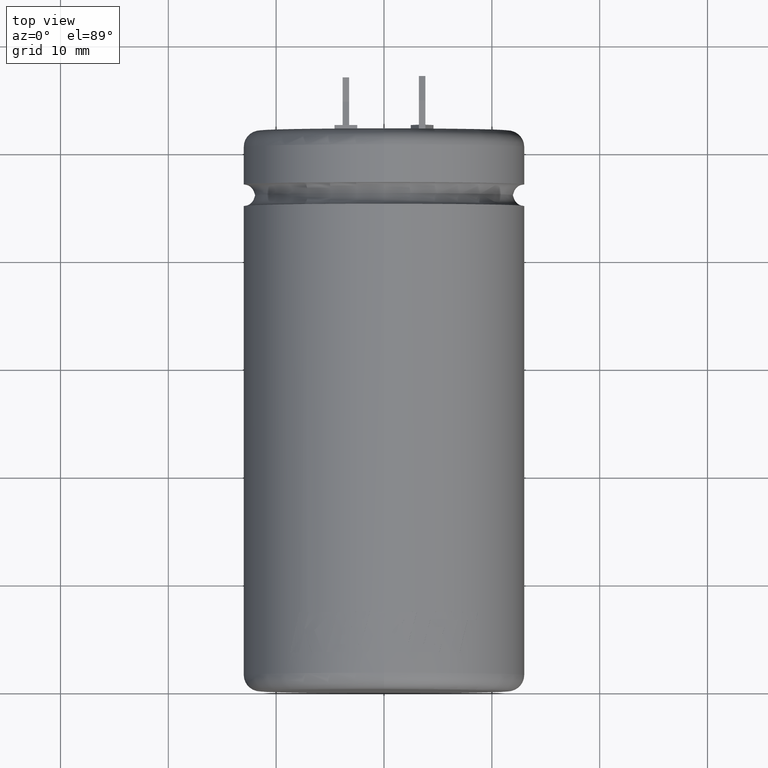
[diagram: clean part render]
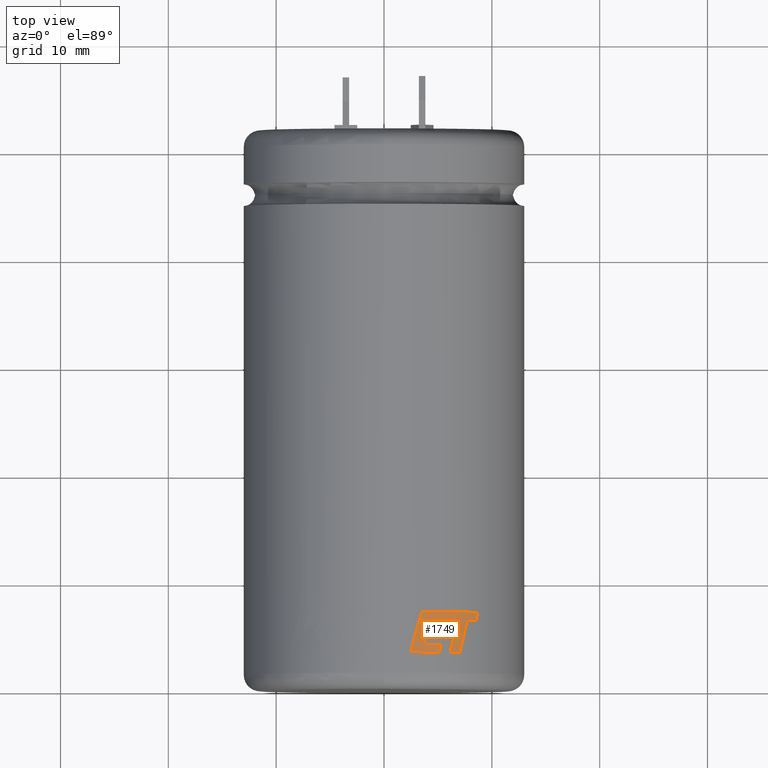
[diagram: same view with one face highlighted and labeled with its STEP entity id]
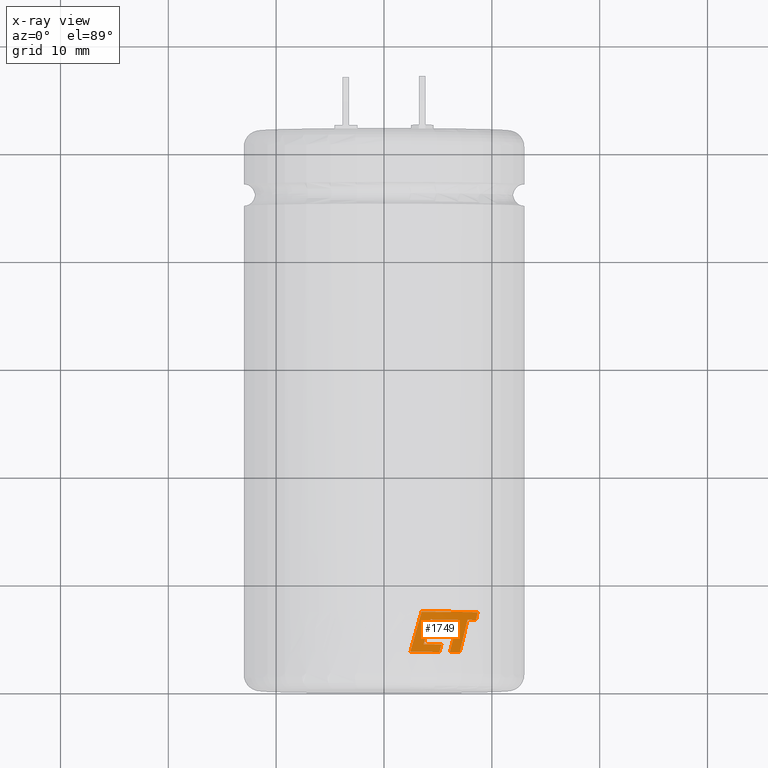
[diagram: x-ray of the same camera — body ghosted, the highlighted face saturated]
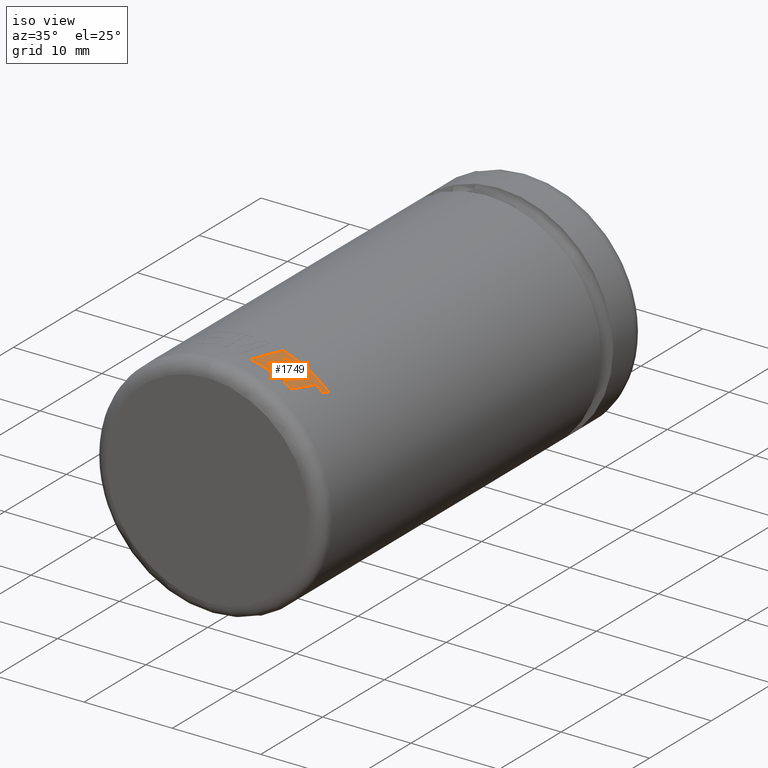
[diagram: same view with one face highlighted and labeled with its STEP entity id]
A machine part, top view. The second image highlights one B-rep face of the part: STEP entity #1749.
The next image is the same camera in x-ray: the body ghosted, the highlighted face saturated — about 0% of this face is hidden behind the body in this view.
A second angle (iso view) of the same face is appended — the face is thin or edge-on in the first view.
In plain terms, the highlighted cylindrical surface (partial cylindrical patch) has radius 12.99 mm, axis along (-0, -1, -0).
Its self-contained STEP definition (entity closure, byte-faithful):
#24 = CARTESIAN_POINT ( 'NONE',  ( 5.367192179862492200, 6.445095965676284100, 11.84298691839125100 ) ) ;
#70 = CARTESIAN_POINT ( 'NONE',  ( 4.116752150106099100, 5.755739136159510500, 12.32040793702046400 ) ) ;
#91 = EDGE_CURVE ( 'NONE', #578, #3281, #3620, .T. ) ;
#105 = DIRECTION ( 'NONE',  ( -0.0000000000000000000, -1.000000000000000000, -0.0000000000000000000 ) ) ;
#117 = ORIENTED_EDGE ( 'NONE', *, *, #4306, .T. ) ;
#191 = CARTESIAN_POINT ( 'NONE',  ( 7.735420378266218800, 6.438231380337271000, 10.43567782041510300 ) ) ;
#256 = ORIENTED_EDGE ( 'NONE', *, *, #1803, .T. ) ;
#269 = CARTESIAN_POINT ( 'NONE',  ( 0.0000000000000000000, 5.755739136159496300, 0.0000000000000000000 ) ) ;
#353 = EDGE_CURVE ( 'NONE', #2528, #2106, #4624, .T. ) ;
#368 = CARTESIAN_POINT ( 'NONE',  ( 4.116752150106099100, 5.755739136159510500, 12.32040793702046400 ) ) ;
#422 = ORIENTED_EDGE ( 'NONE', *, *, #4603, .T. ) ;
#452 = AXIS2_PLACEMENT_3D ( 'NONE', #4329, #1043, #1442 ) ;
#468 = CARTESIAN_POINT ( 'NONE',  ( 2.453458577520435800, 3.433728050141748900, 12.75620010067227900 ) ) ;
#497 = ORIENTED_EDGE ( 'NONE', *, *, #3757, .T. ) ;
#518 = EDGE_CURVE ( 'NONE', #3371, #3281, #2979, .T. ) ;
#563 = CARTESIAN_POINT ( 'NONE',  ( 6.210369351516487100, 6.441741036397344200, 11.41549672385512100 ) ) ;
#578 = VERTEX_POINT ( 'NONE', #823 ) ;
#582 = EDGE_CURVE ( 'NONE', #3464, #1506, #3551, .T. ) ;
#595 = CARTESIAN_POINT ( 'NONE',  ( 5.418316409010668800, 5.067529549049550200, 11.80601318362154700 ) ) ;
#621 = CARTESIAN_POINT ( 'NONE',  ( 0.0000000000000000000, 7.157156118639040400, 0.0000000000000000000 ) ) ;
#644 = EDGE_CURVE ( 'NONE', #2106, #739, #1145, .T. ) ;
#711 = CARTESIAN_POINT ( 'NONE',  ( 5.257960057055902900, 3.906074921018562600, 11.87848644471070800 ) ) ;
#739 = VERTEX_POINT ( 'NONE', #3939 ) ;
#801 = CARTESIAN_POINT ( 'NONE',  ( 4.307237226556102500, 6.448296168183424500, 12.25511352351210600 ) ) ;
#823 = CARTESIAN_POINT ( 'NONE',  ( 3.677800735663510100, 4.142248356456990500, 12.45848633457343300 ) ) ;
#842 = ORIENTED_EDGE ( 'NONE', *, *, #353, .T. ) ;
#857 = CARTESIAN_POINT ( 'NONE',  ( 7.267573582133747000, 4.435229160206915800, 10.77057148050591300 ) ) ;
#862 = CARTESIAN_POINT ( 'NONE',  ( 6.056301234484264400, 7.157156118639040400, 11.49179339168540900 ) ) ;
#918 = B_SPLINE_CURVE_WITH_KNOTS ( 'NONE', 3,
 ( #1960, #1188, #3409, #1944 ),
 .UNSPECIFIED., .F., .F.,
 ( 4, 4 ),
 ( 0.0000000000000000000, 1.000000000000000000 ),
 .UNSPECIFIED. ) ;
#951 = CARTESIAN_POINT ( 'NONE',  ( 8.529159760927022700, 6.438150448534719800, 9.797628987289900900 ) ) ;
#955 = CIRCLE ( 'NONE', #452, 12.99000000000000200 ) ;
#1000 = CARTESIAN_POINT ( 'NONE',  ( 5.874088651662775700, 6.443495864422735600, 11.58599078682555500 ) ) ;
#1043 = DIRECTION ( 'NONE',  ( -0.0000000000000000000, -1.000000000000000000, -0.0000000000000000000 ) ) ;
#1057 = CARTESIAN_POINT ( 'NONE',  ( 6.615065730096743500, 5.436730270278309800, 11.18319225028755600 ) ) ;
#1088 = CARTESIAN_POINT ( 'NONE',  ( 5.135145776635337900, 3.433728050141762600, 11.93190587679538500 ) ) ;
#1121 = CARTESIAN_POINT ( 'NONE',  ( 0.0000000000000000000, 4.142248356456976300, 0.0000000000000000000 ) ) ;
#1145 = B_SPLINE_CURVE_WITH_KNOTS ( 'NONE', 3,
 ( #4635, #563, #3512, #2427 ),
 .UNSPECIFIED., .F., .F.,
 ( 4, 4 ),
 ( 0.0000000000000000000, 1.000000000000000000 ),
 .UNSPECIFIED. ) ;
#1146 = DIRECTION ( 'NONE',  ( -0.0000000000000000000, -1.000000000000000000, -0.0000000000000000000 ) ) ;
#1167 = CARTESIAN_POINT ( 'NONE',  ( 4.843408359511256500, 6.446696066929847600, 12.06666840962242700 ) ) ;
#1188 = CARTESIAN_POINT ( 'NONE',  ( 3.151283692477833100, 5.916013429139943500, 12.60701238849539900 ) ) ;
#1209 = CARTESIAN_POINT ( 'NONE',  ( 7.735420378266218800, 6.438231380337271000, 10.43567782041510300 ) ) ;
#1218 = VERTEX_POINT ( 'NONE', #3600 ) ;
#1245 = CARTESIAN_POINT ( 'NONE',  ( 7.735420378266218800, 6.438231380337271000, 10.43567782041510300 ) ) ;
#1260 = CARTESIAN_POINT ( 'NONE',  ( 7.025635443323304600, 3.433728050141762600, 10.92614051792852200 ) ) ;
#1282 = CARTESIAN_POINT ( 'NONE',  ( 3.677800735663510100, 4.142248356456990500, 12.45848633457343300 ) ) ;
#1307 = ORIENTED_EDGE ( 'NONE', *, *, #3304, .F. ) ;
#1348 = EDGE_CURVE ( 'NONE', #2363, #3954, #3656, .T. ) ;
#1367 = DIRECTION ( 'NONE',  ( -0.0000000000000000000, -1.000000000000000000, -0.0000000000000000000 ) ) ;
#1385 = CARTESIAN_POINT ( 'NONE',  ( 6.111794640696991200, 3.433728050141748900, 11.46237611797604400 ) ) ;
#1404 = CARTESIAN_POINT ( 'NONE',  ( 3.930173414976666300, 5.067529549049536000, 12.38118883339603600 ) ) ;
#1439 = ORIENTED_EDGE ( 'NONE', *, *, #91, .T. ) ;
#1442 = DIRECTION ( 'NONE',  ( 0.0000000000000000000, 0.0000000000000000000, -1.000000000000000000 ) ) ;
#1506 = VERTEX_POINT ( 'NONE', #1209 ) ;
#1517 = DIRECTION ( 'NONE',  ( -0.0000000000000000000, -1.000000000000000000, -0.0000000000000000000 ) ) ;
#1522 = FACE_OUTER_BOUND ( 'NONE', #1943, .T. ) ;
#1523 = CARTESIAN_POINT ( 'NONE',  ( 8.683805221743664800, 7.157156118639040400, 9.660829512563477600 ) ) ;
#1541 = CARTESIAN_POINT ( 'NONE',  ( 5.135145776635337900, 3.433728050141762600, 11.93190587679538500 ) ) ;
#1580 = AXIS2_PLACEMENT_3D ( 'NONE', #269, #2501, #3929 ) ;
#1595 = AXIS2_PLACEMENT_3D ( 'NONE', #2226, #1146, #2241 ) ;
#1597 = CARTESIAN_POINT ( 'NONE',  ( 8.008203710031725800, 6.438204403069740100, 10.23347785030273200 ) ) ;
#1608 = CIRCLE ( 'NONE', #4567, 12.99000000000000200 ) ;
#1716 = VERTEX_POINT ( 'NONE', #1541 ) ;
#1749 = ADVANCED_FACE ( 'NONE', ( #1522 ), #3449, .T. ) ;
#1803 = EDGE_CURVE ( 'NONE', #3954, #4099, #918, .T. ) ;
#1805 = CARTESIAN_POINT ( 'NONE',  ( 3.494852402118757700, 7.157156118639054700, 12.51103939276848500 ) ) ;
#1815 = CARTESIAN_POINT ( 'NONE',  ( 5.196655266748863700, 3.669901485580155500, 11.90543397853865100 ) ) ;
#1881 = DIRECTION ( 'NONE',  ( 0.0000000000000000000, 0.0000000000000000000, -1.000000000000000000 ) ) ;
#1885 = CARTESIAN_POINT ( 'NONE',  ( 4.307237226556102500, 6.448296168183424500, 12.25511352351210600 ) ) ;
#1904 = ORIENTED_EDGE ( 'NONE', *, *, #644, .T. ) ;
#1908 = CARTESIAN_POINT ( 'NONE',  ( 4.307237226556102500, 6.448296168183424500, 12.25511352351210600 ) ) ;
#1943 = EDGE_LOOP ( 'NONE', ( #842, #1904, #497, #1307, #2867, #117, #3700, #2339, #2139, #256, #2136, #422, #2911, #1439, #4263, #2571, #3737, #2410 ) ) ;
#1944 = CARTESIAN_POINT ( 'NONE',  ( 2.453458577520435800, 3.433728050141748900, 12.75620010067227900 ) ) ;
#1950 = CARTESIAN_POINT ( 'NONE',  ( 0.0000000000000000000, 5.067529549049550200, 0.0000000000000000000 ) ) ;
#1960 = CARTESIAN_POINT ( 'NONE',  ( 3.494852402118757700, 7.157156118639054700, 12.51103939276848500 ) ) ;
#1961 = DIRECTION ( 'NONE',  ( 0.0000000000000000000, 0.0000000000000000000, -1.000000000000000000 ) ) ;
#1962 = B_SPLINE_CURVE_WITH_KNOTS ( 'NONE', 3,
 ( #4812, #3318, #2673, #3744 ),
 .UNSPECIFIED., .F., .F.,
 ( 4, 4 ),
 ( 0.0000000000000000000, 1.000000000000000000 ),
 .UNSPECIFIED. ) ;
#2016 = EDGE_CURVE ( 'NONE', #3793, #2363, #2207, .T. ) ;
#2099 = CARTESIAN_POINT ( 'NONE',  ( 6.365679878435695800, 4.435229160210028900, 11.32700327560961300 ) ) ;
#2106 = VERTEX_POINT ( 'NONE', #1000 ) ;
#2136 = ORIENTED_EDGE ( 'NONE', *, *, #3367, .F. ) ;
#2139 = ORIENTED_EDGE ( 'NONE', *, *, #1348, .T. ) ;
#2149 = CARTESIAN_POINT ( 'NONE',  ( 7.025635443323304600, 3.433728050141762600, 10.92614051792852200 ) ) ;
#2197 = AXIS2_PLACEMENT_3D ( 'NONE', #4083, #1517, #1881 ) ;
#2207 = CIRCLE ( 'NONE', #4387, 12.99000000000000200 ) ;
#2221 = CARTESIAN_POINT ( 'NONE',  ( 6.859401993415461100, 6.438231380346604000, 11.03126032204516500 ) ) ;
#2226 = CARTESIAN_POINT ( 'NONE',  ( 0.0000000000000000000, 52.00000000000000000, 0.0000000000000000000 ) ) ;
#2241 = DIRECTION ( 'NONE',  ( 0.0000000000000000000, 0.0000000000000000000, -1.000000000000000000 ) ) ;
#2296 = CARTESIAN_POINT ( 'NONE',  ( 4.243912168388215300, 6.217443824175439300, 12.27737003279627200 ) ) ;
#2339 = ORIENTED_EDGE ( 'NONE', *, *, #2016, .T. ) ;
#2340 = CARTESIAN_POINT ( 'NONE',  ( 8.273054702439411700, 6.438177425802223300, 10.02057690277599100 ) ) ;
#2363 = VERTEX_POINT ( 'NONE', #862 ) ;
#2410 = ORIENTED_EDGE ( 'NONE', *, *, #2664, .T. ) ;
#2420 = CARTESIAN_POINT ( 'NONE',  ( 5.319052816678985000, 4.142248356456976300, 11.85106649771991400 ) ) ;
#2427 = CARTESIAN_POINT ( 'NONE',  ( 6.859401993415461100, 6.438231380346604000, 11.03126032204516500 ) ) ;
#2471 = DIRECTION ( 'NONE',  ( 0.0000000000000000000, 0.0000000000000000000, -1.000000000000000000 ) ) ;
#2501 = DIRECTION ( 'NONE',  ( -0.0000000000000000000, -1.000000000000000000, -0.0000000000000000000 ) ) ;
#2528 = VERTEX_POINT ( 'NONE', #1885 ) ;
#2549 = DIRECTION ( 'NONE',  ( -0.0000000000000000000, -1.000000000000000000, -0.0000000000000000000 ) ) ;
#2564 = B_SPLINE_CURVE_WITH_KNOTS ( 'NONE', 3,
 ( #2221, #1057, #2099, #1385 ),
 .UNSPECIFIED., .F., .F.,
 ( 4, 4 ),
 ( 0.0000000000000000000, 1.000000000000000000 ),
 .UNSPECIFIED. ) ;
#2571 = ORIENTED_EDGE ( 'NONE', *, *, #3245, .T. ) ;
#2587 = EDGE_CURVE ( 'NONE', #4384, #578, #1608, .T. ) ;
#2664 = EDGE_CURVE ( 'NONE', #3100, #2528, #4786, .T. ) ;
#2673 = CARTESIAN_POINT ( 'NONE',  ( 8.632620215552846000, 6.917487561937596400, 9.706838048730769900 ) ) ;
#2691 = AXIS2_PLACEMENT_3D ( 'NONE', #2907, #2549, #4770 ) ;
#2727 = DIRECTION ( 'NONE',  ( 0.0000000000000000000, 0.0000000000000000000, -1.000000000000000000 ) ) ;
#2768 = CIRCLE ( 'NONE', #1580, 12.99000000000000200 ) ;
#2867 = ORIENTED_EDGE ( 'NONE', *, *, #582, .T. ) ;
#2907 = CARTESIAN_POINT ( 'NONE',  ( 0.0000000000000000000, 3.433728050141762600, 0.0000000000000000000 ) ) ;
#2911 = ORIENTED_EDGE ( 'NONE', *, *, #2587, .T. ) ;
#2979 = CIRCLE ( 'NONE', #3123, 12.99000000000000200 ) ;
#3100 = VERTEX_POINT ( 'NONE', #368 ) ;
#3118 = EDGE_CURVE ( 'NONE', #3315, #3793, #1962, .T. ) ;
#3123 = AXIS2_PLACEMENT_3D ( 'NONE', #1950, #105, #2727 ) ;
#3154 = CARTESIAN_POINT ( 'NONE',  ( 5.537143929989492000, 5.526335940456175600, 11.75093296253117500 ) ) ;
#3245 = EDGE_CURVE ( 'NONE', #3371, #1218, #3316, .T. ) ;
#3281 = VERTEX_POINT ( 'NONE', #3514 ) ;
#3304 = EDGE_CURVE ( 'NONE', #3464, #3408, #955, .T. ) ;
#3315 = VERTEX_POINT ( 'NONE', #951 ) ;
#3316 = B_SPLINE_CURVE_WITH_KNOTS ( 'NONE', 3,
 ( #595, #4600, #3154, #3905 ),
 .UNSPECIFIED., .F., .F.,
 ( 4, 4 ),
 ( 0.0000000000000000000, 1.000000000000000000 ),
 .UNSPECIFIED. ) ;
#3318 = CARTESIAN_POINT ( 'NONE',  ( 8.581069558084459800, 6.677819005236150600, 9.752439793691383600 ) ) ;
#3367 = EDGE_CURVE ( 'NONE', #1716, #4099, #4534, .T. ) ;
#3371 = VERTEX_POINT ( 'NONE', #3623 ) ;
#3408 = VERTEX_POINT ( 'NONE', #3980 ) ;
#3409 = CARTESIAN_POINT ( 'NONE',  ( 2.803759705262277400, 4.674870739640846700, 12.68882507521089300 ) ) ;
#3421 = B_SPLINE_CURVE_WITH_KNOTS ( 'NONE', 3,
 ( #191, #1597, #2340, #4189 ),
 .UNSPECIFIED., .F., .F.,
 ( 4, 4 ),
 ( 0.0000000000000000000, 1.000000000000000000 ),
 .UNSPECIFIED. ) ;
#3432 = CARTESIAN_POINT ( 'NONE',  ( 7.504342582318623800, 5.436730270272082800, 10.60696366523498200 ) ) ;
#3449 = CYLINDRICAL_SURFACE ( 'NONE', #1595, 12.99000000000000200 ) ;
#3464 = VERTEX_POINT ( 'NONE', #2149 ) ;
#3512 = CARTESIAN_POINT ( 'NONE',  ( 6.539222216854269300, 6.439986208371967000, 11.23035287661085800 ) ) ;
#3514 = CARTESIAN_POINT ( 'NONE',  ( 3.930173414976666300, 5.067529549049536000, 12.38118883339603600 ) ) ;
#3551 = B_SPLINE_CURVE_WITH_KNOTS ( 'NONE', 3,
 ( #1260, #857, #3432, #1245 ),
 .UNSPECIFIED., .F., .F.,
 ( 4, 4 ),
 ( 0.0000000000000000000, 1.000000000000000000 ),
 .UNSPECIFIED. ) ;
#3600 = CARTESIAN_POINT ( 'NONE',  ( 5.596241072098079500, 5.755739136159496300, 11.72272092404159200 ) ) ;
#3620 = B_SPLINE_CURVE_WITH_KNOTS ( 'NONE', 3,
 ( #1282, #3848, #4222, #1404 ),
 .UNSPECIFIED., .F., .F.,
 ( 4, 4 ),
 ( 0.0000000000000000000, 1.000000000000000000 ),
 .UNSPECIFIED. ) ;
#3623 = CARTESIAN_POINT ( 'NONE',  ( 5.418316409010668800, 5.067529549049550200, 11.80601318362154700 ) ) ;
#3656 = CIRCLE ( 'NONE', #2197, 12.99000000000000200 ) ;
#3693 = DIRECTION ( 'NONE',  ( -0.0000000000000000000, -1.000000000000000000, -0.0000000000000000000 ) ) ;
#3700 = ORIENTED_EDGE ( 'NONE', *, *, #3118, .T. ) ;
#3736 = B_SPLINE_CURVE_WITH_KNOTS ( 'NONE', 3,
 ( #1088, #1815, #711, #4392 ),
 .UNSPECIFIED., .F., .F.,
 ( 4, 4 ),
 ( 0.0000000000000000000, 1.000000000000000000 ),
 .UNSPECIFIED. ) ;
#3737 = ORIENTED_EDGE ( 'NONE', *, *, #4484, .T. ) ;
#3744 = CARTESIAN_POINT ( 'NONE',  ( 8.683805221743664800, 7.157156118639040400, 9.660829512563477600 ) ) ;
#3757 = EDGE_CURVE ( 'NONE', #739, #3408, #2564, .T. ) ;
#3765 = CARTESIAN_POINT ( 'NONE',  ( 4.180414599888148800, 5.986591480167467300, 12.29913570899352100 ) ) ;
#3793 = VERTEX_POINT ( 'NONE', #1523 ) ;
#3848 = CARTESIAN_POINT ( 'NONE',  ( 3.762183841155062800, 4.450675420654495600, 12.43357606545083800 ) ) ;
#3905 = CARTESIAN_POINT ( 'NONE',  ( 5.596241072098079500, 5.755739136159496300, 11.72272092404159200 ) ) ;
#3929 = DIRECTION ( 'NONE',  ( 0.0000000000000000000, 0.0000000000000000000, -1.000000000000000000 ) ) ;
#3939 = CARTESIAN_POINT ( 'NONE',  ( 6.859401993415461100, 6.438231380346604000, 11.03126032204516500 ) ) ;
#3954 = VERTEX_POINT ( 'NONE', #1805 ) ;
#3980 = CARTESIAN_POINT ( 'NONE',  ( 6.111794640696991200, 3.433728050141748900, 11.46237611797604400 ) ) ;
#4083 = CARTESIAN_POINT ( 'NONE',  ( 0.0000000000000000000, 7.157156118639040400, 0.0000000000000000000 ) ) ;
#4099 = VERTEX_POINT ( 'NONE', #468 ) ;
#4189 = CARTESIAN_POINT ( 'NONE',  ( 8.529159760927022700, 6.438150448534719800, 9.797628987289900900 ) ) ;
#4222 = CARTESIAN_POINT ( 'NONE',  ( 3.846313856489213200, 4.759102484852016700, 12.40780845868356000 ) ) ;
#4263 = ORIENTED_EDGE ( 'NONE', *, *, #518, .F. ) ;
#4306 = EDGE_CURVE ( 'NONE', #1506, #3315, #3421, .T. ) ;
#4329 = CARTESIAN_POINT ( 'NONE',  ( 0.0000000000000000000, 3.433728050141762600, 0.0000000000000000000 ) ) ;
#4384 = VERTEX_POINT ( 'NONE', #2420 ) ;
#4387 = AXIS2_PLACEMENT_3D ( 'NONE', #621, #1367, #2471 ) ;
#4392 = CARTESIAN_POINT ( 'NONE',  ( 5.319052816678985000, 4.142248356456976300, 11.85106649771991400 ) ) ;
#4466 = CARTESIAN_POINT ( 'NONE',  ( 5.874088651662775700, 6.443495864422735600, 11.58599078682555500 ) ) ;
#4484 = EDGE_CURVE ( 'NONE', #1218, #3100, #2768, .T. ) ;
#4534 = CIRCLE ( 'NONE', #2691, 12.99000000000000200 ) ;
#4567 = AXIS2_PLACEMENT_3D ( 'NONE', #1121, #3693, #1961 ) ;
#4600 = CARTESIAN_POINT ( 'NONE',  ( 5.477833448047006100, 5.296932744752856700, 11.77869810746410900 ) ) ;
#4603 = EDGE_CURVE ( 'NONE', #1716, #4384, #3736, .T. ) ;
#4624 = B_SPLINE_CURVE_WITH_KNOTS ( 'NONE', 3,
 ( #1908, #1167, #24, #4466 ),
 .UNSPECIFIED., .F., .F.,
 ( 4, 4 ),
 ( 0.0000000000000000000, 1.000000000000000000 ),
 .UNSPECIFIED. ) ;
#4635 = CARTESIAN_POINT ( 'NONE',  ( 5.874088651662775700, 6.443495864422735600, 11.58599078682555500 ) ) ;
#4770 = DIRECTION ( 'NONE',  ( 0.0000000000000000000, 0.0000000000000000000, -1.000000000000000000 ) ) ;
#4786 = B_SPLINE_CURVE_WITH_KNOTS ( 'NONE', 3,
 ( #70, #3765, #2296, #801 ),
 .UNSPECIFIED., .F., .F.,
 ( 4, 4 ),
 ( 0.0000000000000000000, 1.000000000000000000 ),
 .UNSPECIFIED. ) ;
#4812 = CARTESIAN_POINT ( 'NONE',  ( 8.529159760927022700, 6.438150448534719800, 9.797628987289900900 ) ) ;